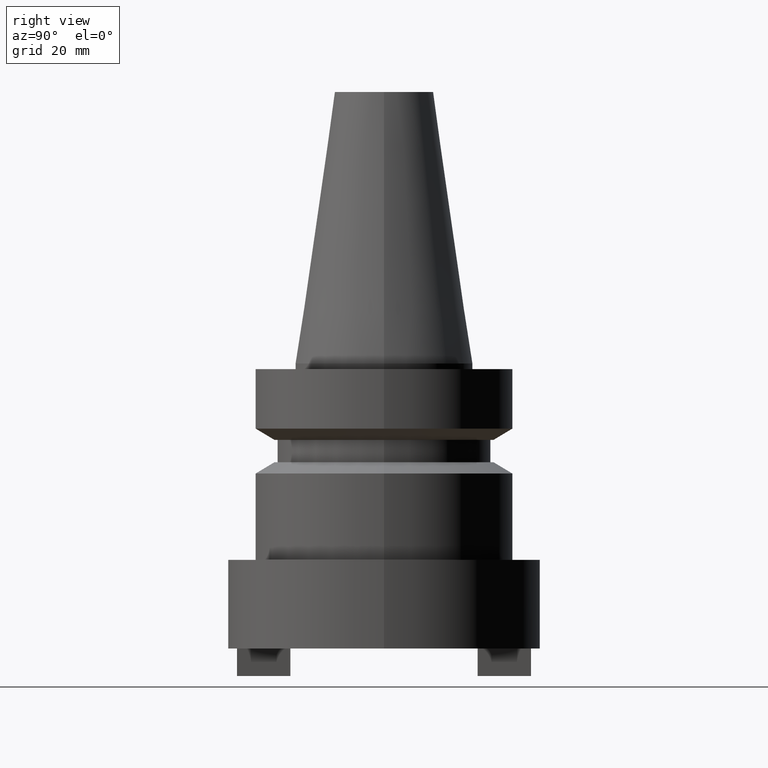
[diagram: clean part render]
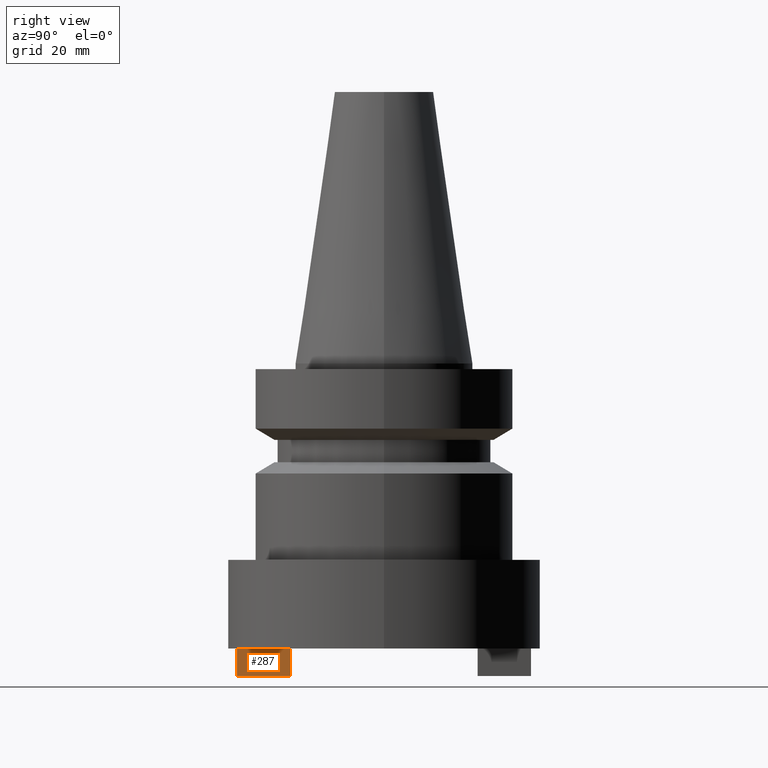
[diagram: same view with one face highlighted and labeled with its STEP entity id]
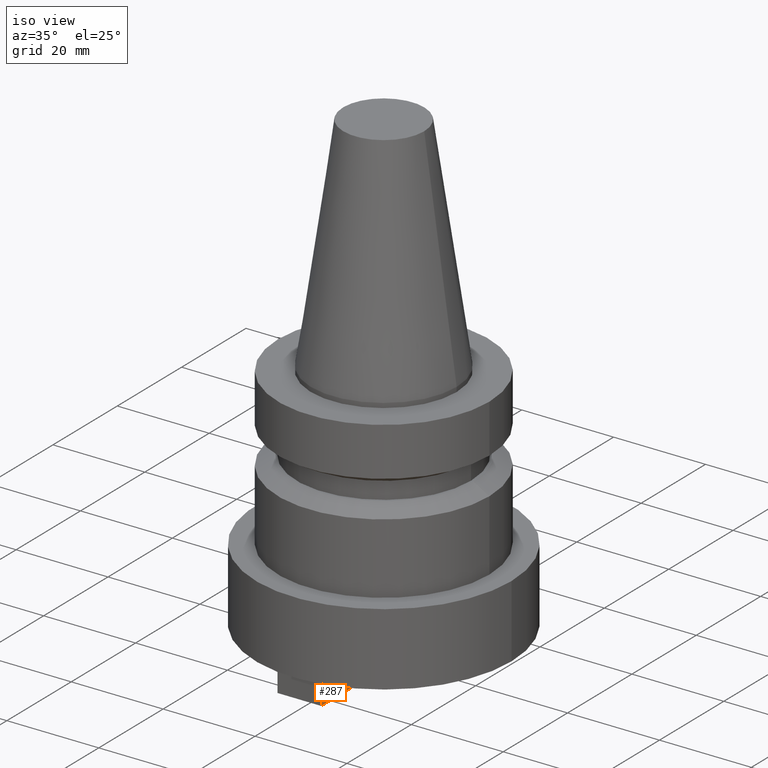
[diagram: same view with one face highlighted and labeled with its STEP entity id]
A machine part, right view. The second image highlights one B-rep face of the part: STEP entity #287.
A second angle (iso view) of the same face is appended — the face is thin or edge-on in the first view.
In plain terms, the highlighted planar face has unit normal (-1, -0, 0).
Its self-contained STEP definition (entity closure, byte-faithful):
#22 = VECTOR ( 'NONE', #592, 1000.000000000000000 ) ;
#23 = VECTOR ( 'NONE', #217, 1000.000000000000000 ) ;
#31 = DIRECTION ( 'NONE',  ( 9.101382350350512656E-17, -1.000000000000000000, 0.000000000000000000 ) ) ;
#37 = CARTESIAN_POINT ( 'NONE',  ( 4.764999999999996128, -26.20999999999998309, -55.70000000000000284 ) ) ;
#56 = ORIENTED_EDGE ( 'NONE', *, *, #247, .F. ) ;
#59 = PLANE ( 'NONE',  #458 ) ;
#69 = CARTESIAN_POINT ( 'NONE',  ( 4.764999999999993463, 4.336808689942012806E-16, -50.79999999999999716 ) ) ;
#92 = EDGE_CURVE ( 'NONE', #437, #573, #585, .T. ) ;
#115 = CARTESIAN_POINT ( 'NONE',  ( 4.764999999999995239, -16.67999999999998550, -55.70000000000000284 ) ) ;
#157 = CARTESIAN_POINT ( 'NONE',  ( 4.764999999999993463, 4.336808689942012806E-16, -55.70000000000000284 ) ) ;
#164 = CARTESIAN_POINT ( 'NONE',  ( 4.764999999999995239, -16.67999999999998550, -55.70000000000000284 ) ) ;
#191 = CARTESIAN_POINT ( 'NONE',  ( 4.764999999999996128, -26.20999999999998309, -50.79999999999999716 ) ) ;
#217 = DIRECTION ( 'NONE',  ( 9.101382350350512656E-17, -1.000000000000000000, 0.000000000000000000 ) ) ;
#242 = CARTESIAN_POINT ( 'NONE',  ( 4.764999999999995239, -16.67999999999998906, -50.79999999999999716 ) ) ;
#247 = EDGE_CURVE ( 'NONE', #354, #672, #502, .T. ) ;
#287 = ADVANCED_FACE ( 'NONE', ( #663 ), #59, .F. ) ;
#289 = ORIENTED_EDGE ( 'NONE', *, *, #92, .T. ) ;
#302 = VECTOR ( 'NONE', #31, 1000.000000000000000 ) ;
#307 = CARTESIAN_POINT ( 'NONE',  ( 4.764999999999996128, -26.20999999999998309, -55.70000000000000284 ) ) ;
#354 = VERTEX_POINT ( 'NONE', #307 ) ;
#361 = EDGE_LOOP ( 'NONE', ( #667, #56, #473, #289 ) ) ;
#364 = DIRECTION ( 'NONE',  ( 9.101382350350512656E-17, -1.000000000000000000, 0.000000000000000000 ) ) ;
#380 = EDGE_CURVE ( 'NONE', #437, #354, #584, .T. ) ;
#392 = LINE ( 'NONE', #69, #302 ) ;
#393 = DIRECTION ( 'NONE',  ( -0.000000000000000000, -0.000000000000000000, 1.000000000000000000 ) ) ;
#437 = VERTEX_POINT ( 'NONE', #164 ) ;
#458 = AXIS2_PLACEMENT_3D ( 'NONE', #470, #510, #364 ) ;
#470 = CARTESIAN_POINT ( 'NONE',  ( 4.764999999999993463, 4.336808689942012806E-16, -55.70000000000000284 ) ) ;
#473 = ORIENTED_EDGE ( 'NONE', *, *, #380, .F. ) ;
#477 = VECTOR ( 'NONE', #393, 1000.000000000000000 ) ;
#502 = LINE ( 'NONE', #37, #477 ) ;
#510 = DIRECTION ( 'NONE',  ( -1.000000000000000000, -9.101382350350512656E-17, 0.000000000000000000 ) ) ;
#556 = EDGE_CURVE ( 'NONE', #573, #672, #392, .T. ) ;
#573 = VERTEX_POINT ( 'NONE', #242 ) ;
#584 = LINE ( 'NONE', #157, #23 ) ;
#585 = LINE ( 'NONE', #115, #22 ) ;
#592 = DIRECTION ( 'NONE',  ( -0.000000000000000000, -0.000000000000000000, 1.000000000000000000 ) ) ;
#663 = FACE_OUTER_BOUND ( 'NONE', #361, .T. ) ;
#667 = ORIENTED_EDGE ( 'NONE', *, *, #556, .T. ) ;
#672 = VERTEX_POINT ( 'NONE', #191 ) ;